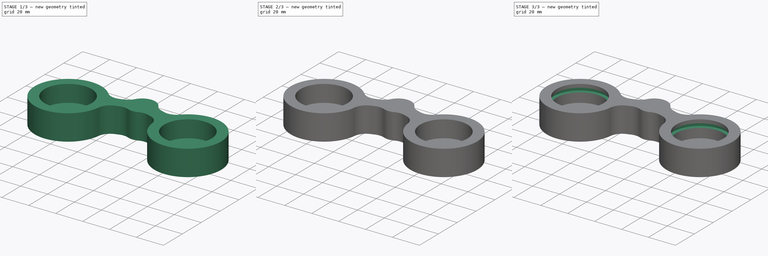
[diagram: build sequence overview — one tinted view per stage of 3, left to right]
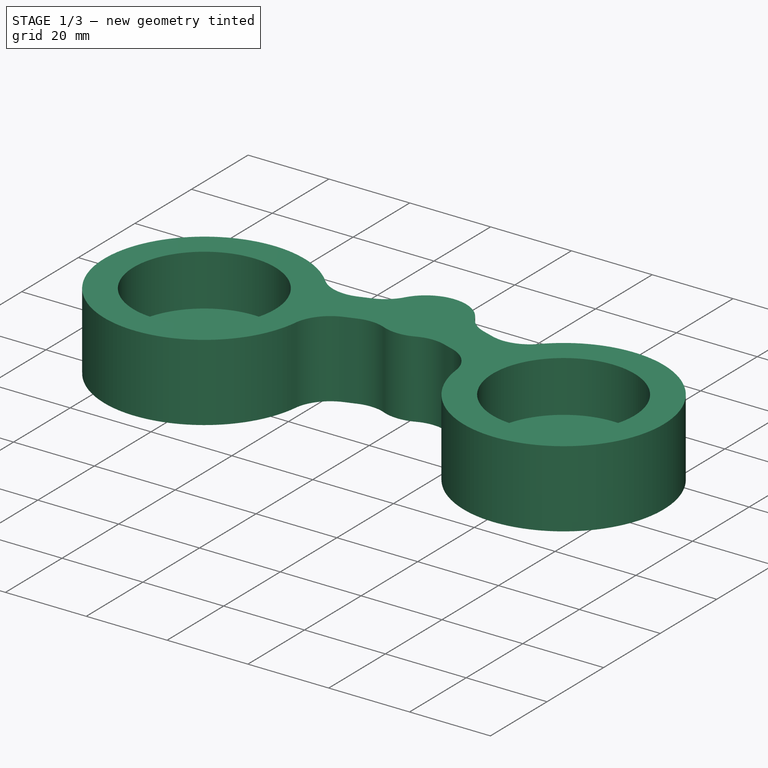
[diagram: stage 1 of 3 — iso view after this stage's code; geometry added in this stage tinted green]
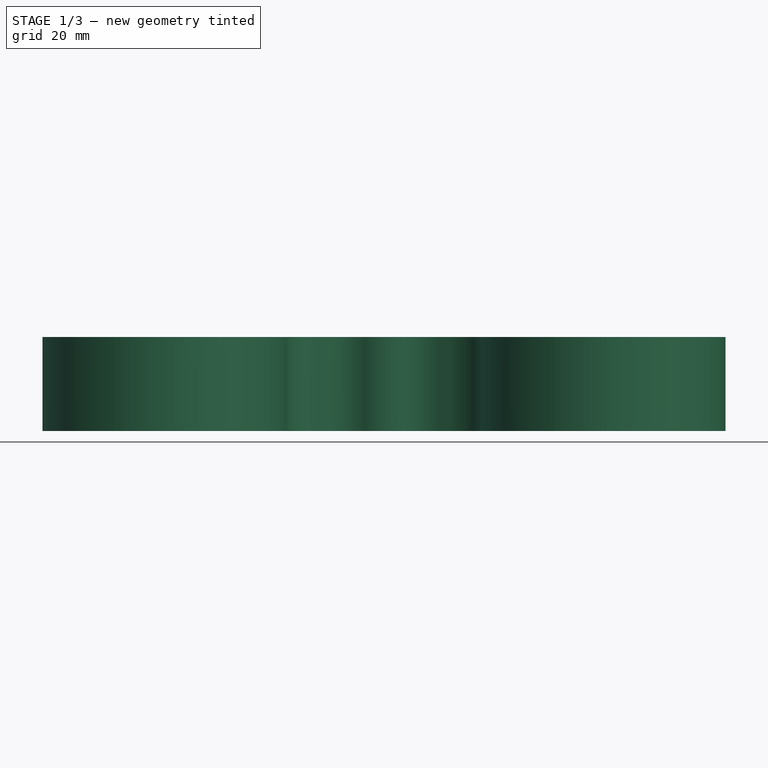
[diagram: stage 1 of 3 — front view after this stage's code; geometry added in this stage tinted green]
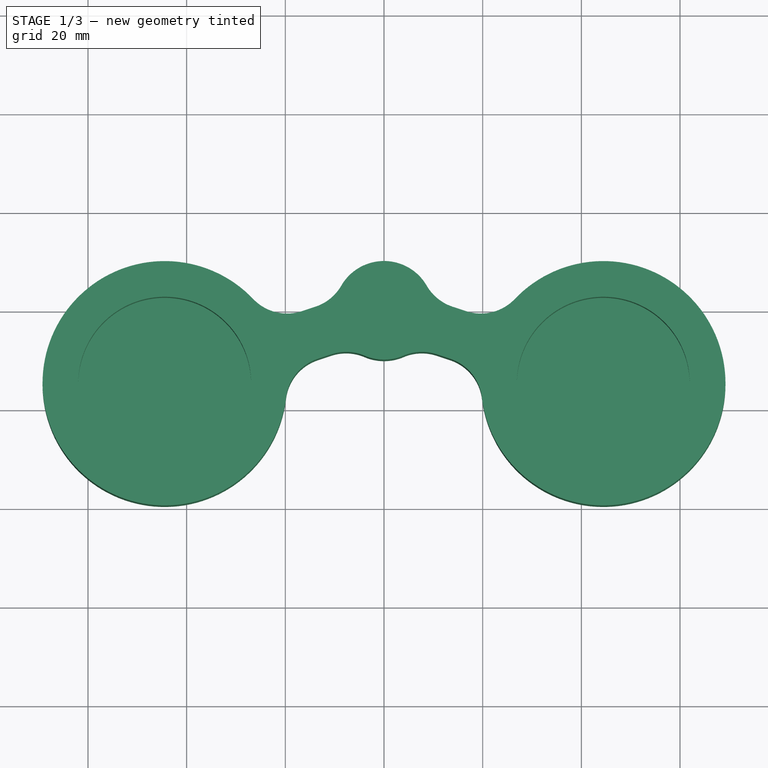
[diagram: stage 1 of 3 — top view after this stage's code; geometry added in this stage tinted green]
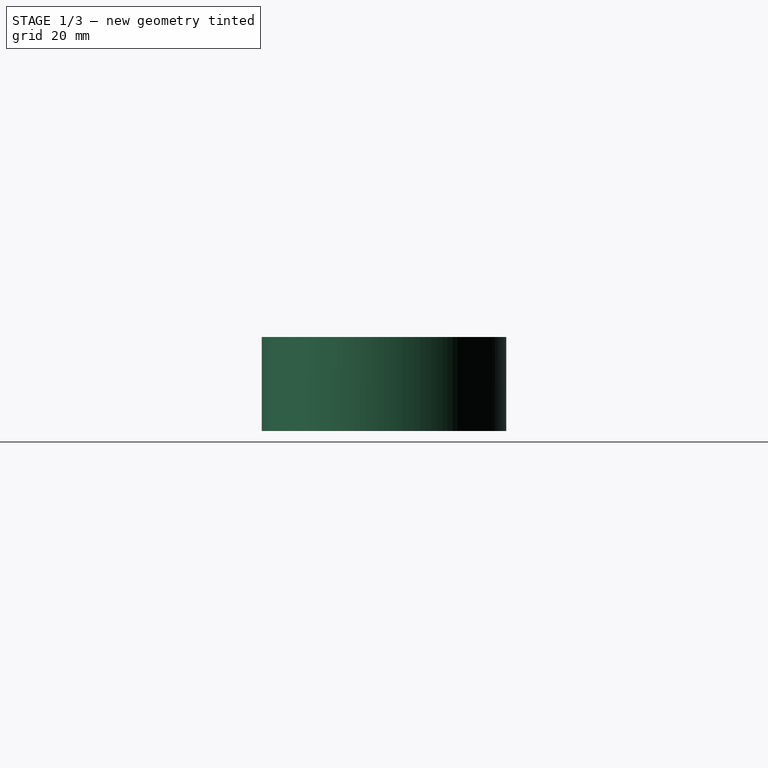
[diagram: stage 1 of 3 — right view after this stage's code; geometry added in this stage tinted green]
FCSTD DOCUMENT  (FreeCAD 0.19R24291 (Git))
Label: TITAN-8M
License: All rights reserved
LicenseURL: http://en.wikipedia.org/wiki/All_rights_reserved
objects: Sketcher::SketchObject×4, PartDesign::Pocket×3, PartDesign::Pad×1, PartDesign::Chamfer×1, PartDesign::Plane×1, PartDesign::Body×1
note: 16 computed .brp shape members not serialized (recipe doc carries the construction recipe); baked Part::Feature solids carry a one-line shape summary decoded from their .brp

FEATURE [Sketcher::SketchObject] Sketch
  FullyConstrained = true
  MapMode = 5
  Support = -> [XY_Plane]
  sketch-geometry (18):
    g0: ArcOfCircle CenterX=-44.45 CenterY=-14.7828 CenterZ=0 NormalX=0 NormalY=0 NormalZ=1 AngleXU=0 Radius=24.765 StartAngle=0.76105 EndAngle=6.16426
    g1: ArcOfCircle CenterX=44.45 CenterY=-14.7828 CenterZ=0 NormalX=0 NormalY=0 NormalZ=1 AngleXU=0 Radius=24.765 StartAngle=3.26051 EndAngle=8.66373
    g2: ArcOfCircle CenterX=0 CenterY=0 CenterZ=0 NormalX=0 NormalY=0 NormalZ=1 AngleXU=0 Radius=9.9949 StartAngle=0.524297 EndAngle=2.6173
    g3: LineSegment StartX=-44.45 StartY=-14.7828 StartZ=0 EndX=0 EndY=0 EndZ=0
    g4: LineSegment StartX=0 StartY=0 StartZ=0 EndX=44.45 EndY=-14.7828 EndZ=0
    g5: ArcOfCircle CenterX=16.8979 CenterY=9.77174 CenterZ=0 NormalX=0 NormalY=0 NormalZ=1 AngleXU=0 Radius=9.525 StartAngle=3.66589 EndAngle=4.39132
    g6: LineSegment StartX=13.892 StartY=0.73347 StartZ=0 EndX=16.6143 EndY=-0.171878 EndZ=0
    g7: ArcOfCircle CenterX=19.6202 CenterY=8.86639 CenterZ=0 NormalX=0 NormalY=0 NormalZ=1 AngleXU=0 Radius=9.525 StartAngle=4.39132 EndAngle=5.52214
    g8: ArcOfCircle CenterX=-16.8979 CenterY=9.77174 CenterZ=0 NormalX=0 NormalY=0 NormalZ=1 AngleXU=0 Radius=9.525 StartAngle=5.03345 EndAngle=5.75889
    g9: LineSegment StartX=-13.892 StartY=0.73347 StartZ=0 EndX=-16.6143 EndY=-0.171878 EndZ=0
    g10: ArcOfCircle CenterX=-19.6202 CenterY=8.86639 CenterZ=0 NormalX=0 NormalY=0 NormalZ=1 AngleXU=0 Radius=9.525 StartAngle=3.90264 EndAngle=5.03345
    g11: ArcOfCircle CenterX=0 CenterY=0 CenterZ=0 NormalX=0 NormalY=0 NormalZ=1 AngleXU=0 Radius=9.9949 StartAngle=4.30802 EndAngle=5.11676
    g12: ArcOfCircle CenterX=7.67991 CenterY=-17.9456 CenterZ=0 NormalX=0 NormalY=0 NormalZ=1 AngleXU=0 Radius=9.525 StartAngle=1.24973 EndAngle=1.97517
    g13: LineSegment StartX=10.6858 StartY=-8.90735 StartZ=0 EndX=13.4081 EndY=-9.8127 EndZ=0
    g14: ArcOfCircle CenterX=10.4022 CenterY=-18.851 CenterZ=0 NormalX=0 NormalY=0 NormalZ=1 AngleXU=0 Radius=9.525 StartAngle=0.11892 EndAngle=1.24973
    g15: ArcOfCircle CenterX=-7.67991 CenterY=-17.9456 CenterZ=0 NormalX=0 NormalY=0 NormalZ=1 AngleXU=0 Radius=9.525 StartAngle=1.16643 EndAngle=1.89186
    g16: LineSegment StartX=-10.6858 StartY=-8.90735 StartZ=0 EndX=-13.4081 EndY=-9.8127 EndZ=0
    g17: ArcOfCircle CenterX=-10.4022 CenterY=-18.851 CenterZ=0 NormalX=0 NormalY=0 NormalZ=1 AngleXU=0 Radius=9.525 StartAngle=1.89186 EndAngle=3.02267
  constraints (43):
    c: Symmetric(g0,g1,g-2)
    c: DistanceY(g0,g-1) = 14.7828
    c: DistanceX(g0,g-1) = 44.45
    c: Diameter(g0) = 49.53
    c: Equal(g1,g0)
    c: Coincident(g2,g-1)
    c: Coincident(g3,g0)
    c: Coincident(g3,g2)
    c: Coincident(g4,g2)
    c: Coincident(g4,g1)
    c: Tangent(g2,g5) = 1.5708
    c: Tangent(g5,g6) = -1.5708
    c: Tangent(g6,g7) = -1.5708
    c: Tangent(g2,g8) = 1.5708
    c: Tangent(g8,g9) = 1.5708
    c: Tangent(g9,g10) = 1.5708
    c: Diameter(g2) = 19.9898
    c: Equal(g5,g8)
    c: Equal(g8,g10)
    c: Equal(g10,g7)
    c: Radius(g7) = 9.525
    c: Coincident(g11,g2)
    c: Parallel(g9,g3)
    c: Parallel(g6,g4)
    c: Tangent(g11,g12) = 1.5708
    c: Tangent(g12,g13) = 1.5708
    c: Tangent(g13,g14) = 1.5708
    c: Tangent(g11,g15) = 1.5708
    c: Tangent(g15,g16) = -1.5708
    c: Tangent(g16,g17) = -1.5708
    c: Tangent(g0,g17) = 1.5708
    c: Tangent(g0,g10) = 1.5708
    c: Tangent(g1,g7) = 1.5708
    c: Tangent(g1,g14) = 1.5708
    c: Equal(g14,g12)
    c: Equal(g12,g15)
    c: Equal(g15,g17)
    c: Equal(g14,g7)
    c: Symmetric(g9,g16,g3)
    c: Symmetric(g13,g6,g4)
    c: Distance(g9,g16) = 10.16
    c: Distance(g13,g6) = 10.16
    c: Equal(g11,g2)
FEATURE [PartDesign::Pad] Pad
  Direction = (1,1,1)
  Length = 19.05
  Length2 = 99.9998
  Profile = -> Sketch
  Type = 0
FEATURE [Sketcher::SketchObject] Sketch001
  ExternalGeometry = -> [Pad]
  FullyConstrained = true
  MapMode = 5
  Placement = pos=(0,0,19.05) rot=(0,0,1;0rad)
  Support = -> [Pad]
  sketch-geometry (2):
    g0: Circle CenterX=-44.45 CenterY=-14.7828 CenterZ=0 NormalX=0 NormalY=0 NormalZ=1 AngleXU=0 Radius=17.526
    g1: Circle CenterX=44.45 CenterY=-14.7828 CenterZ=0 NormalX=0 NormalY=0 NormalZ=1 AngleXU=0 Radius=17.526
  constraints (4):
    c: Coincident(g0,g-3)
    c: Coincident(g1,g-4)
    c: Equal(g0,g1)
    c: Diameter(g0) = 35.052
FEATURE [PartDesign::Pocket] Pocket
  BaseFeature = -> Pad
  Length = 12.7
  Length2 = 99.9998
  Profile = -> Sketch001
  Type = 0
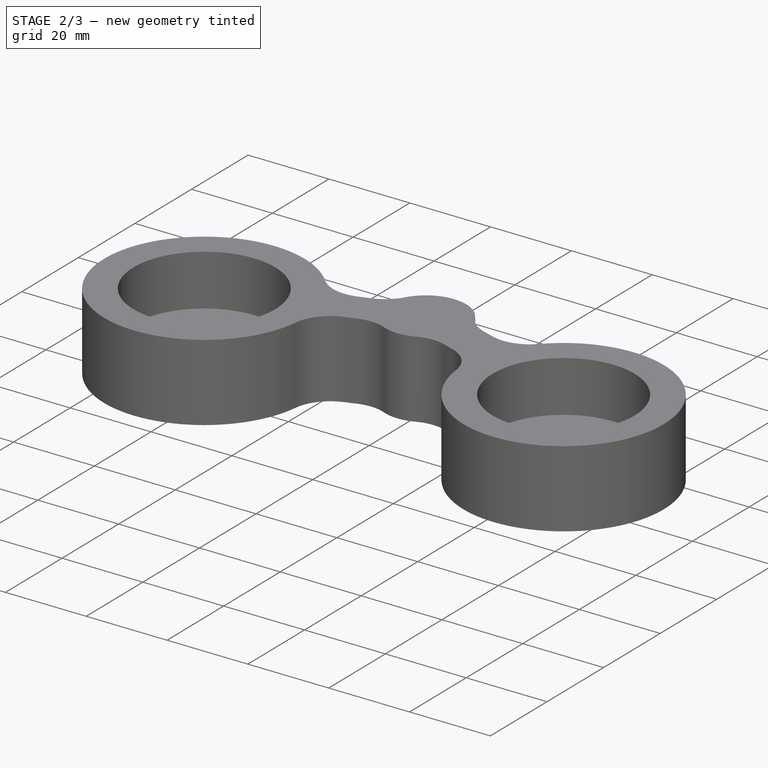
[diagram: stage 2 of 3 — iso view after this stage's code; geometry added in this stage tinted green]
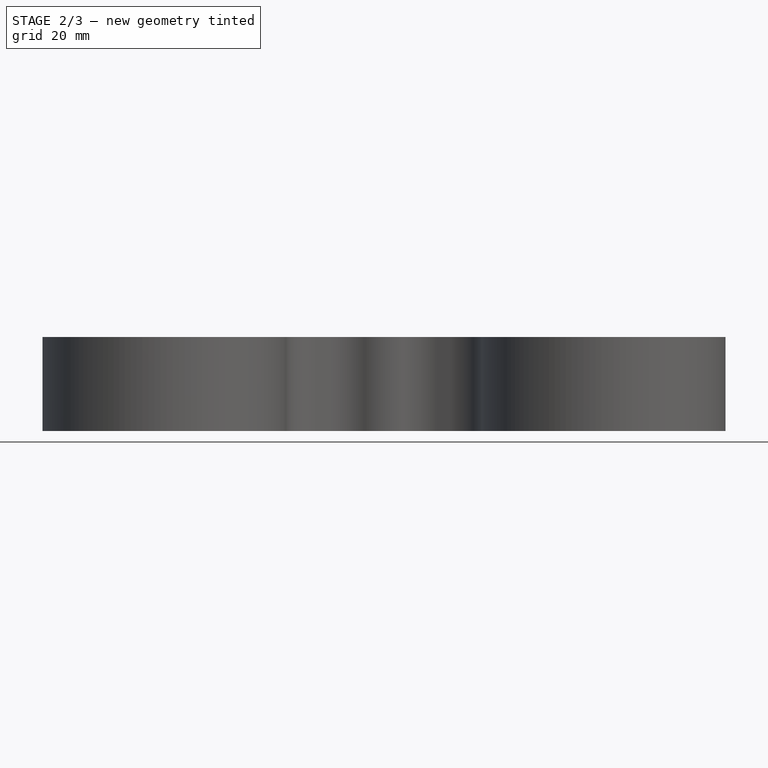
[diagram: stage 2 of 3 — front view after this stage's code; geometry added in this stage tinted green]
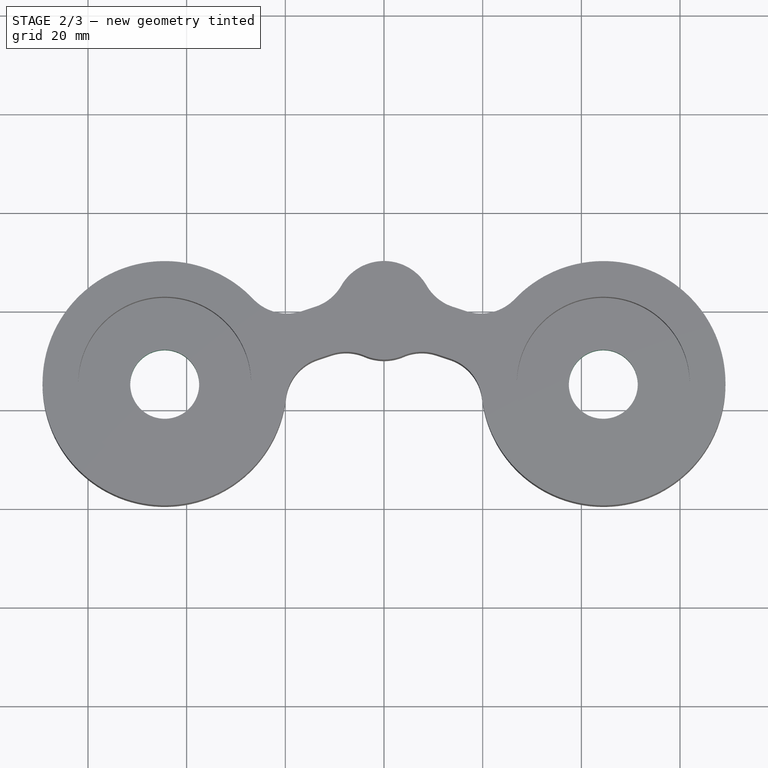
[diagram: stage 2 of 3 — top view after this stage's code; geometry added in this stage tinted green]
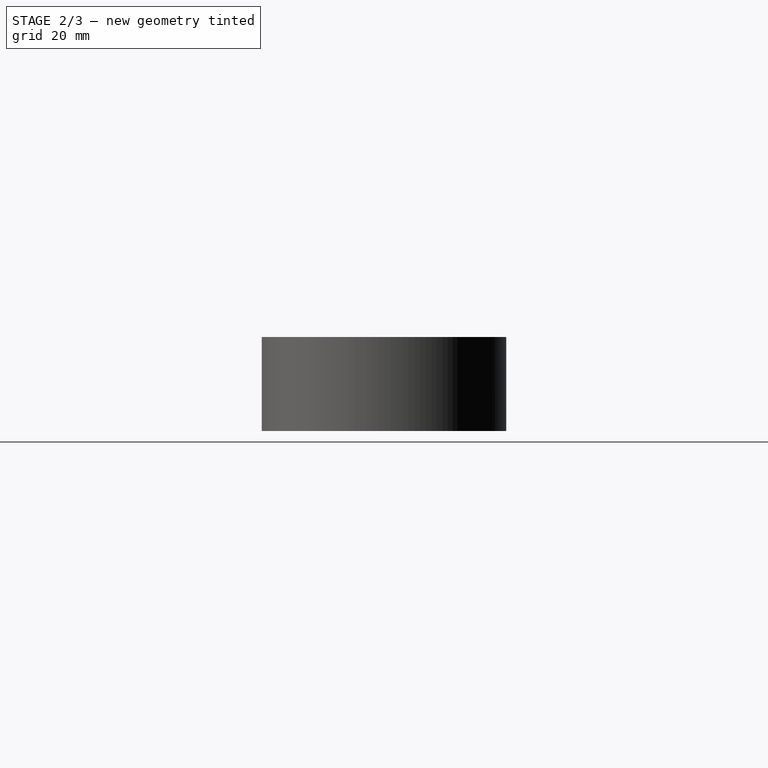
[diagram: stage 2 of 3 — right view after this stage's code; geometry added in this stage tinted green]
FEATURE [Sketcher::SketchObject] Sketch002
  ExternalGeometry = -> [Pocket]
  FullyConstrained = true
  MapMode = 5
  Placement = pos=(0,0,6.35) rot=(0,0,1;0rad)
  Support = -> [Pocket]
  sketch-geometry (2):
    g0: Circle CenterX=-44.45 CenterY=-14.7828 CenterZ=0 NormalX=0 NormalY=0 NormalZ=1 AngleXU=0 Radius=6.985
    g1: Circle CenterX=44.45 CenterY=-14.7828 CenterZ=0 NormalX=0 NormalY=0 NormalZ=1 AngleXU=0 Radius=6.985
  constraints (4):
    c: Coincident(g0,g-3)
    c: Coincident(g1,g-4)
    c: Equal(g1,g0)
    c: Diameter(g0) = 13.97
FEATURE [PartDesign::Pocket] Pocket001
  BaseFeature = -> Pocket
  Length = 5.0038
  Length2 = 99.9998
  Profile = -> Sketch002
  Type = 1
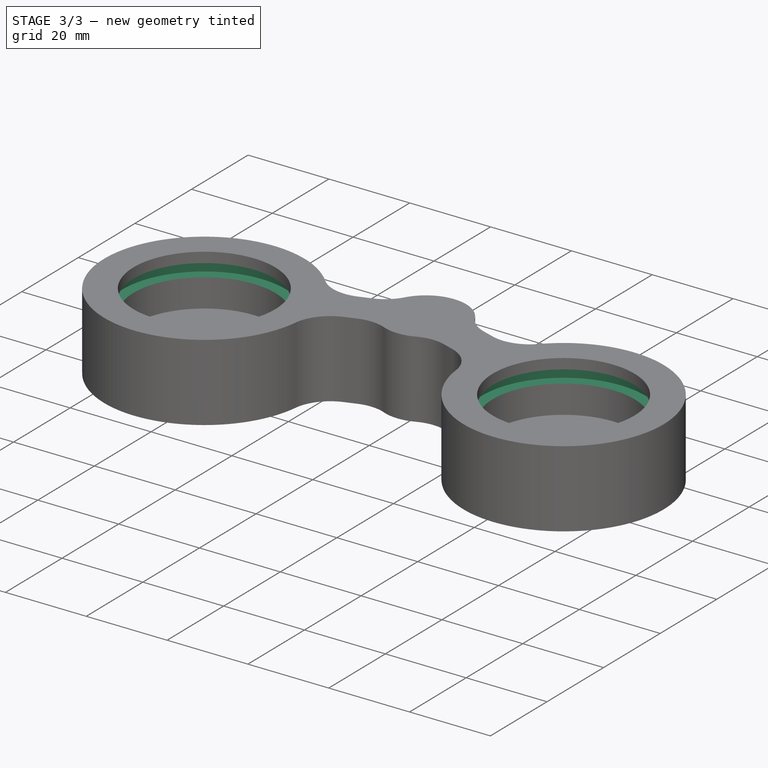
[diagram: stage 3 of 3 — iso view after this stage's code; geometry added in this stage tinted green]
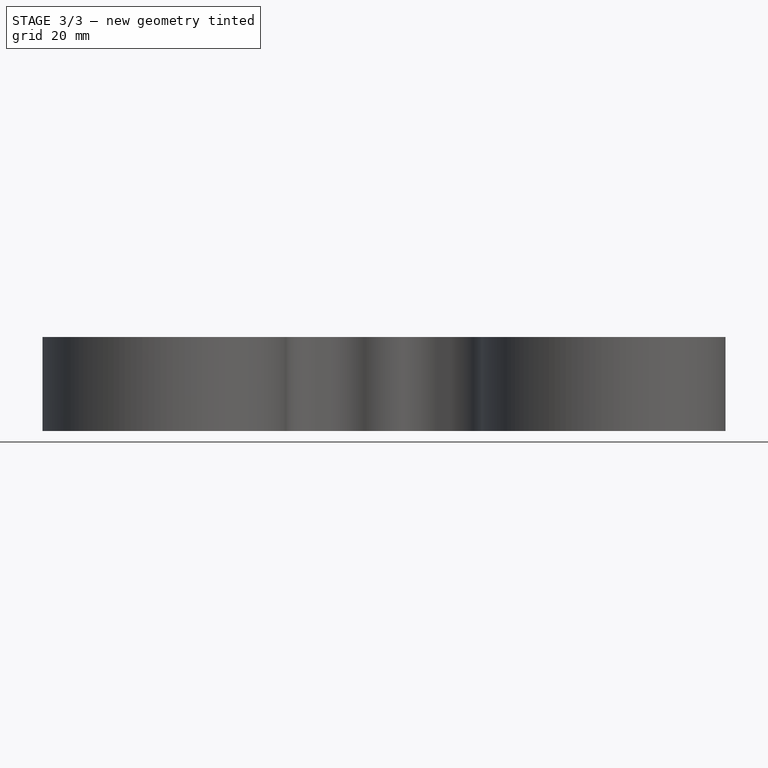
[diagram: stage 3 of 3 — front view after this stage's code; geometry added in this stage tinted green]
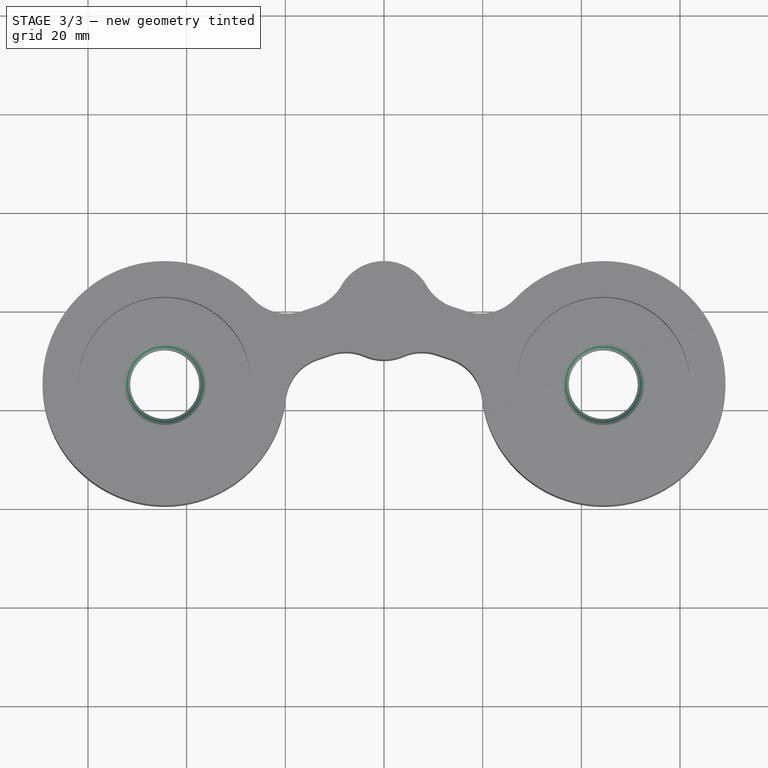
[diagram: stage 3 of 3 — top view after this stage's code; geometry added in this stage tinted green]
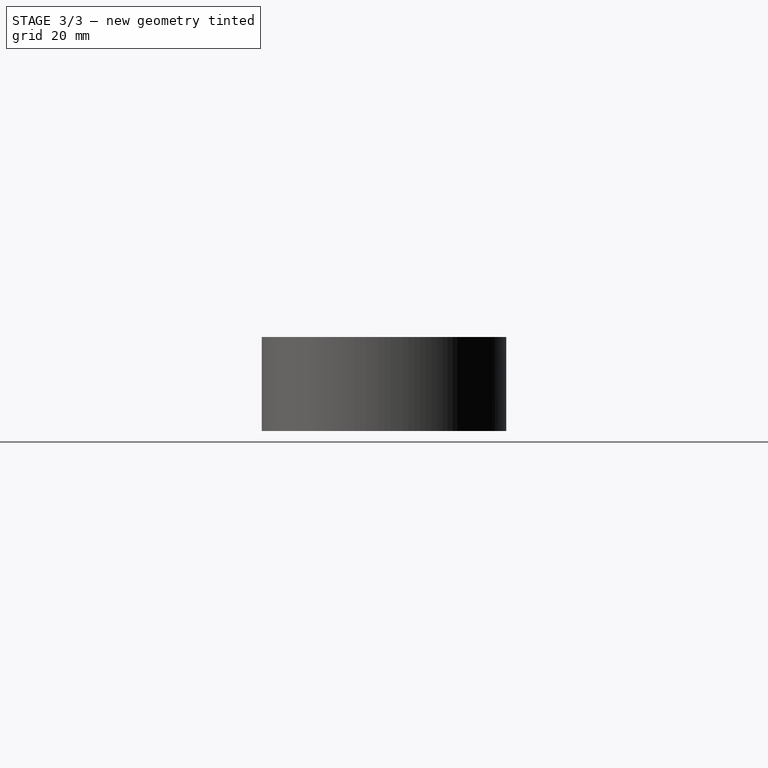
[diagram: stage 3 of 3 — right view after this stage's code; geometry added in this stage tinted green]
FEATURE [PartDesign::Chamfer] Chamfer
  Angle = 45
  Base = -> Pocket001 [Edge53,Edge55]
  BaseFeature = -> Pocket001
  ChamferType = 0
  FlipDirection = false
  Size = 1.27
  Size2 = 1
  SupportTransform = false
FEATURE [PartDesign::Plane] DatumPlane
  AttachmentOffset = pos=(0,0,-5.715) rot=(0,0,1;0rad)
  Length = 157.306
  MapMode = 5
  Placement = pos=(0,0,13.335) rot=(0,0,1;0rad)
  ResizeMode = 0
  Support = -> [Chamfer]
  Width = 83.4261
FEATURE [Sketcher::SketchObject] Sketch003
  ExternalGeometry = -> [Chamfer]
  FullyConstrained = true
  MapMode = 5
  Placement = pos=(0,0,13.335) rot=(0,0,1;0rad)
  Support = -> [DatumPlane]
  sketch-geometry (2):
    g0: Circle CenterX=-44.45 CenterY=-14.7828 CenterZ=0 NormalX=0 NormalY=0 NormalZ=1 AngleXU=0 Radius=20.32
    g1: Circle CenterX=44.45 CenterY=-14.7828 CenterZ=0 NormalX=0 NormalY=0 NormalZ=1 AngleXU=0 Radius=20.32
  constraints (4):
    c: Coincident(g0,g-3)
    c: Coincident(g1,g-4)
    c: Equal(g1,g0)
    c: Diameter(g0) = 40.64
FEATURE [PartDesign::Pocket] Pocket002
  BaseFeature = -> Chamfer
  Length = 3.175
  Length2 = 99.9998
  Profile = -> Sketch003
  Reversed = true
  Type = 0
FEATURE [PartDesign::Body] Body
  Group = -> [Sketch,Pad,Sketch001,Pocket,Sketch002,Pocket001,Chamfer,DatumPlane,Sketch003,Pocket002]
  Origin = -> Origin
  Tip = -> Pocket002
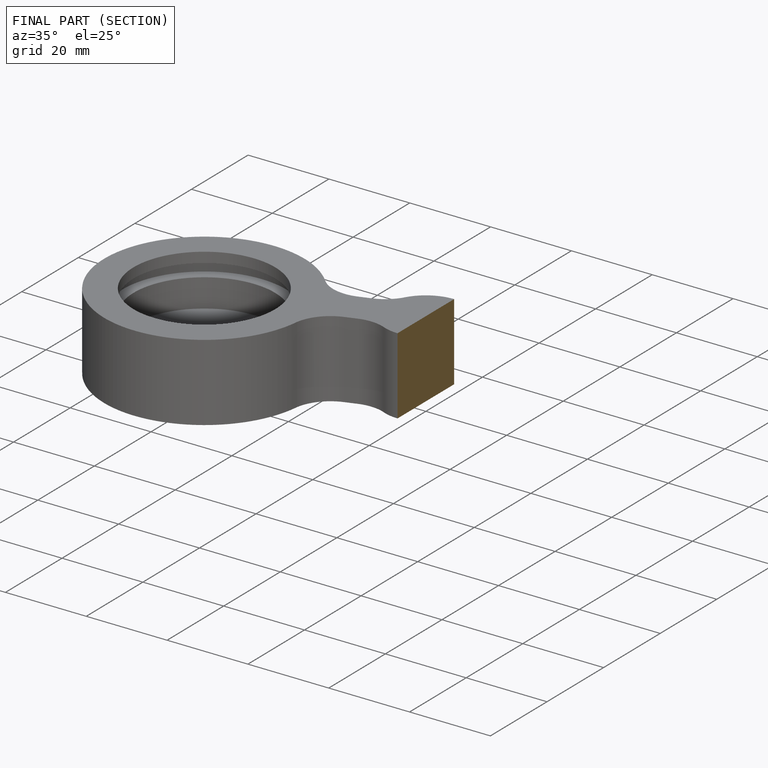
[diagram: finished part — half-section view (interior)]
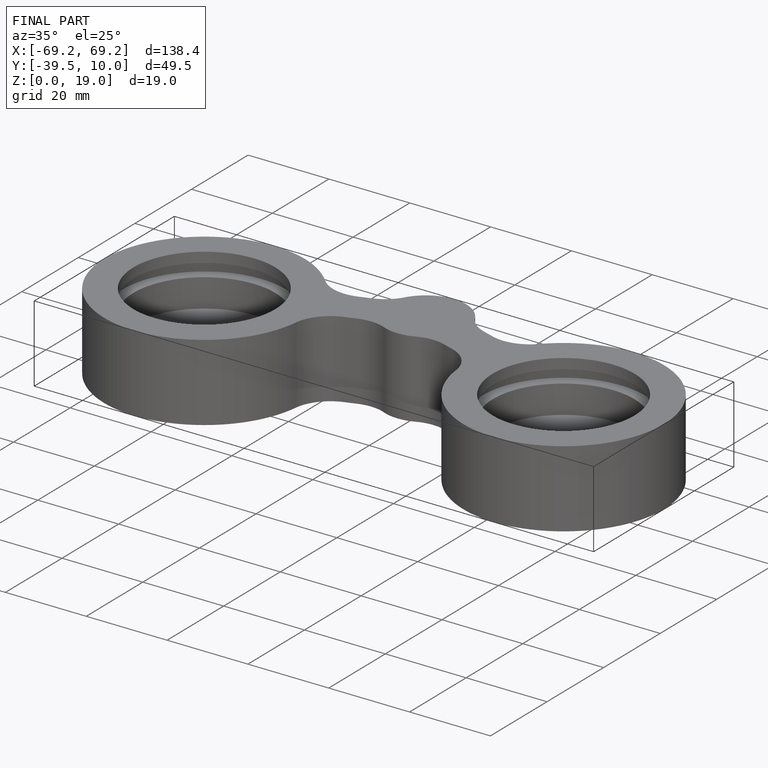
[diagram: finished part — iso view with bounding-box wireframe]
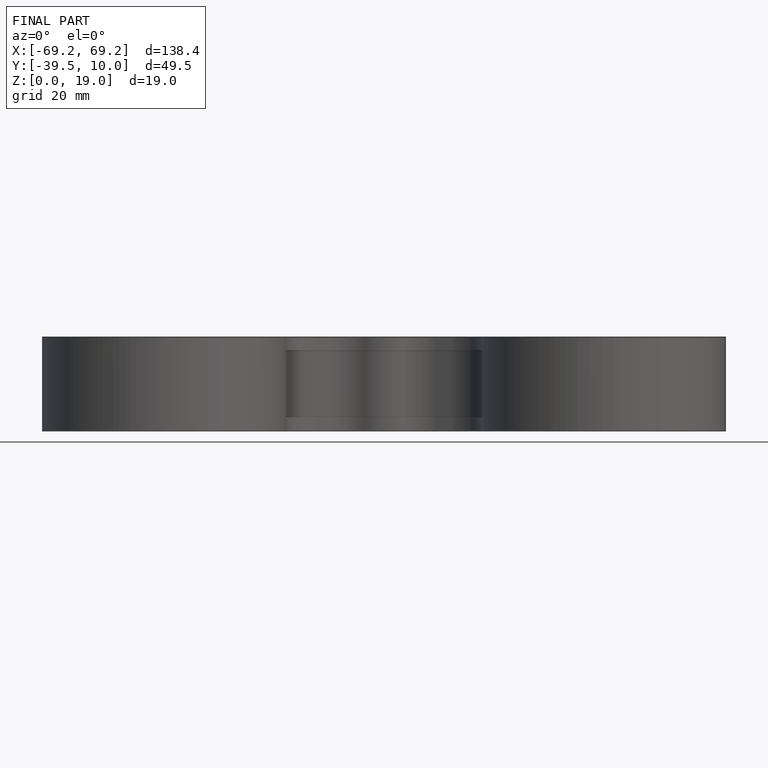
[diagram: finished part — front view with bounding-box wireframe]
